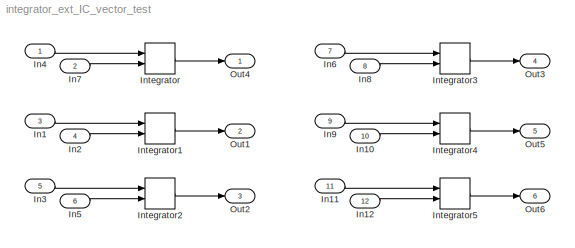
MODEL integrator_ext_IC_vector_test
KIND model
BLOCK [Inport] In1
  IconDisplay = Port number
  OutDataTypeStr = double
  Port = 3
  PortDimensions = 1
  SID = 3
BLOCK [Inport] In10
  IconDisplay = Port number
  OutDataTypeStr = double
  Port = 10
  PortDimensions = 3
  SID = 10
BLOCK [Inport] In11
  IconDisplay = Port number
  OutDataTypeStr = double
  Port = 11
  PortDimensions = 3
  SID = 11
BLOCK [Inport] In12
  IconDisplay = Port number
  OutDataTypeStr = double
  Port = 12
  PortDimensions = 3
  SID = 12
BLOCK [Inport] In2
  IconDisplay = Port number
  OutDataTypeStr = double
  Port = 4
  PortDimensions = 3
  SID = 4
BLOCK [Inport] In3
  IconDisplay = Port number
  OutDataTypeStr = double
  Port = 5
  PortDimensions = 3
  SID = 5
BLOCK [Inport] In4
  IconDisplay = Port number
  OutDataTypeStr = double
  PortDimensions = 3
  SID = 1
BLOCK [Inport] In5
  IconDisplay = Port number
  OutDataTypeStr = double
  Port = 6
  PortDimensions = 3
  SID = 6
BLOCK [Inport] In6
  IconDisplay = Port number
  OutDataTypeStr = double
  Port = 7
  PortDimensions = 3
  SID = 7
BLOCK [Inport] In7
  IconDisplay = Port number
  OutDataTypeStr = double
  Port = 2
  SID = 2
BLOCK [Inport] In8
  IconDisplay = Port number
  OutDataTypeStr = double
  Port = 8
  SID = 8
BLOCK [Inport] In9
  IconDisplay = Port number
  OutDataTypeStr = double
  Port = 9
  PortDimensions = 1
  SID = 9
BLOCK [DiscreteIntegrator] Integrator
  ICPrevOutput = DiscIntNeverNeededParam
  ICPrevScaledInput = DiscIntNeverNeededParam
  InitialConditionSource = external
  Ports = [2, 1]
  SID = 13
  SampleTime = 1.0
BLOCK [DiscreteIntegrator] Integrator1
  ICPrevOutput = DiscIntNeverNeededParam
  ICPrevScaledInput = DiscIntNeverNeededParam
  InitialConditionSource = external
  Ports = [2, 1]
  SID = 14
  SampleTime = 1.0
BLOCK [DiscreteIntegrator] Integrator2
  ICPrevOutput = DiscIntNeverNeededParam
  ICPrevScaledInput = DiscIntNeverNeededParam
  InitialConditionSource = external
  Ports = [2, 1]
  SID = 15
  SampleTime = 1.0
BLOCK [DiscreteIntegrator] Integrator3
  ICPrevOutput = DiscIntNeverNeededParam
  ICPrevScaledInput = DiscIntNeverNeededParam
  InitialConditionSource = external
  Ports = [2, 1]
  SID = 16
  SampleTime = 1.0
  gainval = [2 5 .9]
BLOCK [DiscreteIntegrator] Integrator4
  ICPrevOutput = DiscIntNeverNeededParam
  ICPrevScaledInput = DiscIntNeverNeededParam
  InitialConditionSource = external
  Ports = [2, 1]
  SID = 17
  SampleTime = 1.0
  gainval = [2 5 .9]
BLOCK [DiscreteIntegrator] Integrator5
  ICPrevOutput = DiscIntNeverNeededParam
  ICPrevScaledInput = DiscIntNeverNeededParam
  InitialConditionSource = external
  Ports = [2, 1]
  SID = 18
  SampleTime = 1.0
  gainval = [2 5 .9]
BLOCK [Outport] Out1
  IconDisplay = Port number
  Port = 2
  SID = 20
BLOCK [Outport] Out2
  IconDisplay = Port number
  Port = 3
  SID = 21
BLOCK [Outport] Out3
  IconDisplay = Port number
  Port = 4
  SID = 22
BLOCK [Outport] Out4
  IconDisplay = Port number
  SID = 19
BLOCK [Outport] Out5
  IconDisplay = Port number
  Port = 5
  SID = 23
BLOCK [Outport] Out6
  IconDisplay = Port number
  Port = 6
  SID = 24
LINE In10:1 -> Integrator4:2
LINE In11:1 -> Integrator5:1
LINE In12:1 -> Integrator5:2
LINE In1:1 -> Integrator1:1
LINE In2:1 -> Integrator1:2
LINE In3:1 -> Integrator2:1
LINE In4:1 -> Integrator:1
LINE In5:1 -> Integrator2:2
LINE In6:1 -> Integrator3:1
LINE In7:1 -> Integrator:2
LINE In8:1 -> Integrator3:2
LINE In9:1 -> Integrator4:1
LINE Integrator1:1 -> Out1:1
LINE Integrator2:1 -> Out2:1
LINE Integrator3:1 -> Out3:1
LINE Integrator4:1 -> Out5:1
LINE Integrator5:1 -> Out6:1
LINE Integrator:1 -> Out4:1
